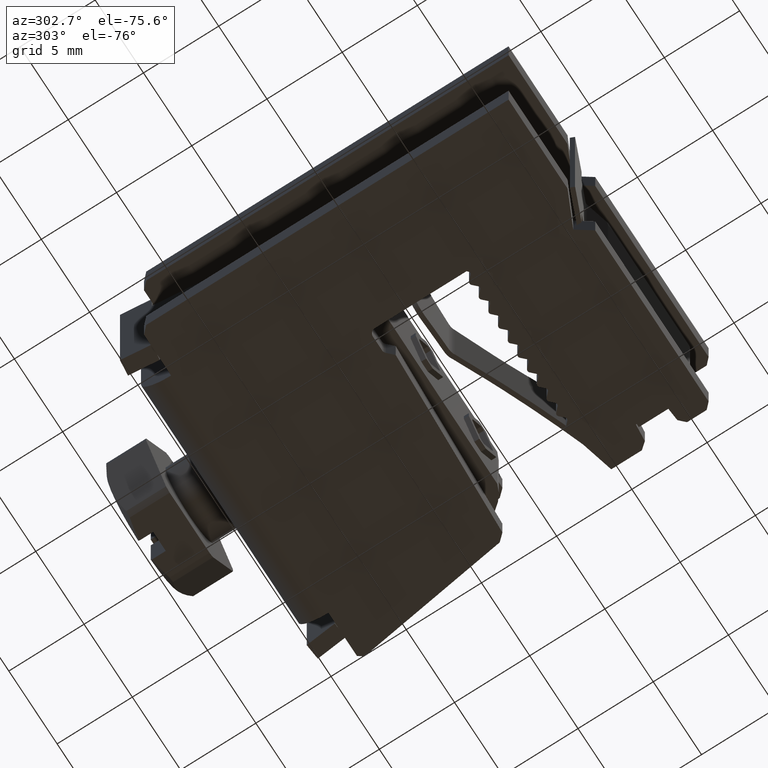
[diagram: clean part render]
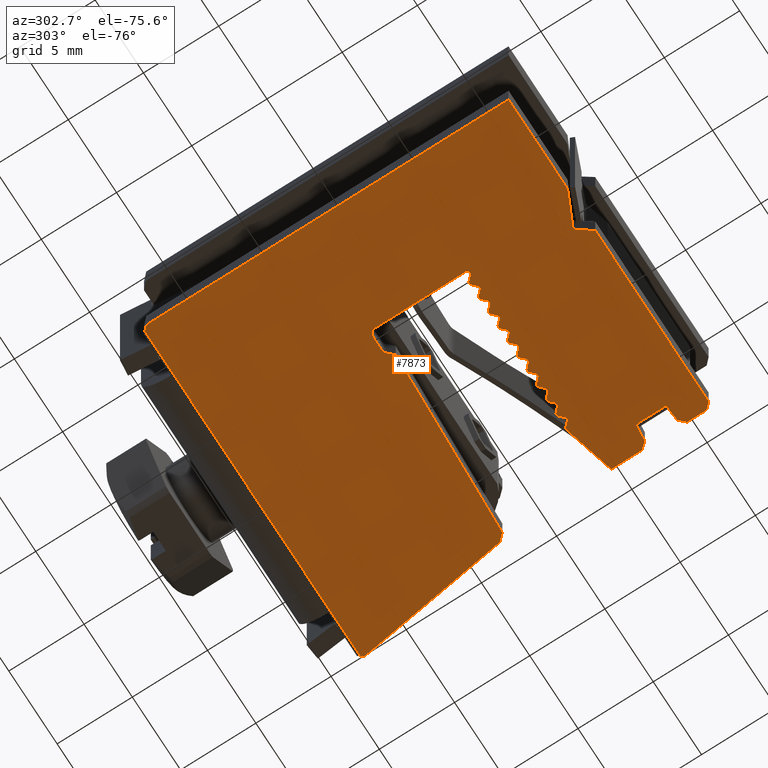
[diagram: same view with one face highlighted and labeled with its STEP entity id]
A machine part, auxiliary view. The second image highlights one B-rep face of the part: STEP entity #7873.
In plain terms, the highlighted planar face has unit normal (0, 0, 1).
Its self-contained STEP definition (entity closure, byte-faithful):
#29 = CARTESIAN_POINT ( 'NONE',  ( 4.722601150250723900, 6.082502876557419400, 0.0000000000000000000 ) ) ;
#36 = DIRECTION ( 'NONE',  ( 0.0000000000000000000, 0.0000000000000000000, 1.000000000000000000 ) ) ;
#37 = DIRECTION ( 'NONE',  ( -1.000000000000000000, 6.065466699181716300E-015, 0.0000000000000000000 ) ) ;
#40 = LINE ( 'NONE', #83, #2666 ) ;
#75 = DIRECTION ( 'NONE',  ( 1.000000000000000000, 0.0000000000000000000, 0.0000000000000000000 ) ) ;
#83 = CARTESIAN_POINT ( 'NONE',  ( 7.822759001598525300, 12.51150000000231400, 0.0000000000000000000 ) ) ;
#202 = LINE ( 'NONE', #237, #2765 ) ;
#231 = DIRECTION ( 'NONE',  ( -0.0000000000000000000, 1.000000000000000000, 0.0000000000000000000 ) ) ;
#237 = CARTESIAN_POINT ( 'NONE',  ( 17.10677823012335700, -12.06975933738560900, 0.0000000000000000000 ) ) ;
#240 = LINE ( 'NONE', #249, #2740 ) ;
#244 = DIRECTION ( 'NONE',  ( 0.7071067811865435800, -0.7071067811865513500, 0.0000000000000000000 ) ) ;
#249 = CARTESIAN_POINT ( 'NONE',  ( 6.069487555859775600, 12.40679067427697100, 0.0000000000000000000 ) ) ;
#351 = CARTESIAN_POINT ( 'NONE',  ( 4.823717419961033300, 5.981386606847112700, -5.204170427930421300E-015 ) ) ;
#377 = CARTESIAN_POINT ( 'NONE',  ( 7.632106903367505500, 5.981386606848028400, -5.637851296924623100E-015 ) ) ;
#393 = CARTESIAN_POINT ( 'NONE',  ( 12.35847019589036600, 6.255645337120669500, -1.040834085586084300E-014 ) ) ;
#394 = CARTESIAN_POINT ( 'NONE',  ( 18.53677823012254000, 0.3933912111475201300, -8.673617379884035500E-015 ) ) ;
#408 = CARTESIAN_POINT ( 'NONE',  ( 14.84204281414866100, 5.981386606838452900, -7.806255641895631900E-015 ) ) ;
#411 = CARTESIAN_POINT ( 'NONE',  ( 12.10567952161617100, 6.255645337120672200, -8.673617379884035500E-015 ) ) ;
#417 = CARTESIAN_POINT ( 'NONE',  ( 7.357848173076340500, 6.255645337139194200, -3.469446951953614200E-015 ) ) ;
#442 = CARTESIAN_POINT ( 'NONE',  ( 5.827258094237934400, 5.981386606850907000, -6.938893903907228400E-015 ) ) ;
#480 = CARTESIAN_POINT ( 'NONE',  ( 6.101516824527660500, 6.255645337140633100, -7.372574772901430200E-015 ) ) ;
#483 = CARTESIAN_POINT ( 'NONE',  ( 13.36201087016494400, 6.255645337126948000, -1.040834085586084300E-014 ) ) ;
#516 = CARTESIAN_POINT ( 'NONE',  ( 13.63626960045344000, 5.981386606838452000, -7.806255641895631900E-015 ) ) ;
#522 = CARTESIAN_POINT ( 'NONE',  ( 13.83850213987280000, 5.981386606838447600, -9.540979117872439000E-015 ) ) ;
#540 = CARTESIAN_POINT ( 'NONE',  ( 6.830798768508448600, 5.981386606849504500, -5.204170427930421300E-015 ) ) ;
#548 = CARTESIAN_POINT ( 'NONE',  ( 6.628566229091789300, 5.981386606849500100, -7.372574772901430200E-015 ) ) ;
#551 = CARTESIAN_POINT ( 'NONE',  ( 13.10922019589072300, 6.255645337126950700, -8.673617379884035500E-015 ) ) ;
#572 = CARTESIAN_POINT ( 'NONE',  ( 12.83496146559711400, 5.981386606833341400, -7.806255641895631900E-015 ) ) ;
#581 = CARTESIAN_POINT ( 'NONE',  ( 6.354307498800652700, 6.255645337140637500, -6.938893903907228400E-015 ) ) ;
#610 = CARTESIAN_POINT ( 'NONE',  ( 14.11276087016391200, 6.255645337129557500, -8.673617379884035500E-015 ) ) ;
#614 = CARTESIAN_POINT ( 'NONE',  ( 11.83142079132903200, 5.981386606833531500, -9.540979117872439000E-015 ) ) ;
#621 = CARTESIAN_POINT ( 'NONE',  ( 5.625025554816157400, 5.981386606850914900, -7.372574772901430200E-015 ) ) ;
#644 = CARTESIAN_POINT ( 'NONE',  ( 5.350766824528947500, 6.255645337138125800, -6.938893903907228400E-015 ) ) ;
#665 = CARTESIAN_POINT ( 'NONE',  ( 5.816696881586721300, 12.51150000000231400, -1.734723475976807100E-015 ) ) ;
#671 = CARTESIAN_POINT ( 'NONE',  ( 17.10677823012335400, 2.875999999990634000, 0.0000000000000000000 ) ) ;
#677 = CARTESIAN_POINT ( 'NONE',  ( 18.18063862555324700, 2.969950610800876900, 0.0000000000000000000 ) ) ;
#679 = CARTESIAN_POINT ( 'NONE',  ( 4.892278230129295300, 12.51150000000231300, 0.0000000000000000000 ) ) ;
#691 = CARTESIAN_POINT ( 'NONE',  ( 15.11630154443840500, 6.255645337128195900, -8.673617379884035500E-015 ) ) ;
#699 = CARTESIAN_POINT ( 'NONE',  ( 6.069487555859778300, 12.40679067427696900, -3.469446951953614200E-015 ) ) ;
#702 = CARTESIAN_POINT ( 'NONE',  ( 8.830798768508449500, 5.981386606848521300, 0.0000000000000000000 ) ) ;
#704 = CARTESIAN_POINT ( 'NONE',  ( 18.53677823012254300, -0.9115000000102674300, -4.553649124439118600E-015 ) ) ;
#712 = CARTESIAN_POINT ( 'NONE',  ( 4.621484880540415400, 5.981386606847115300, -4.336808689942017700E-016 ) ) ;
#739 = CARTESIAN_POINT ( 'NONE',  ( 14.36555154443816200, 6.255645337129556600, -1.040834085586084300E-014 ) ) ;
#744 = CARTESIAN_POINT ( 'NONE',  ( 18.14500227544563400, 0.7851671658244251400, -1.019150042136374200E-014 ) ) ;
#752 = CARTESIAN_POINT ( 'NONE',  ( 5.097976150252054400, 6.255645337138133800, -7.372574772901430200E-015 ) ) ;
#780 = CARTESIAN_POINT ( 'NONE',  ( 17.10677823012335700, 0.8759999999907573900, -4.770489558936219500E-015 ) ) ;
#785 = CARTESIAN_POINT ( 'NONE',  ( 14.63981027472926000, 5.981386606838459100, -6.071532165918824800E-015 ) ) ;
#1254 = CARTESIAN_POINT ( 'NONE',  ( 5.732776863096832500, -0.2578493662919057500, 0.0000000000000000000 ) ) ;
#1484 = LINE ( 'NONE', #1254, #1516 ) ;
#1516 = VECTOR ( 'NONE', #9740, 1000.000000000000000 ) ;
#1547 = CIRCLE ( 'NONE', #1551, 0.1787499999999827600 ) ;
#1551 = AXIS2_PLACEMENT_3D ( 'NONE', #10694, #10725, #10722 ) ;
#1555 = VECTOR ( 'NONE', #10661, 1000.000000000000100 ) ;
#1560 = VECTOR ( 'NONE', #10720, 1000.000000000000100 ) ;
#1579 = CIRCLE ( 'NONE', #1581, 0.1787500000028485200 ) ;
#1581 = AXIS2_PLACEMENT_3D ( 'NONE', #9825, #9827, #9788 ) ;
#1605 = AXIS2_PLACEMENT_3D ( 'NONE', #9940, #9956, #9929 ) ;
#1608 = VECTOR ( 'NONE', #9961, 1000.000000000000100 ) ;
#1612 = AXIS2_PLACEMENT_3D ( 'NONE', #9893, #9917, #9901 ) ;
#1615 = VECTOR ( 'NONE', #9854, 1000.000000000000100 ) ;
#1617 = CIRCLE ( 'NONE', #1622, 0.1429999999980873800 ) ;
#1622 = AXIS2_PLACEMENT_3D ( 'NONE', #9919, #9884, #9877 ) ;
#1629 = CIRCLE ( 'NONE', #1605, 0.1429999999981064500 ) ;
#1642 = CIRCLE ( 'NONE', #1649, 0.1429999999999504400 ) ;
#1649 = AXIS2_PLACEMENT_3D ( 'NONE', #9895, #9896, #9882 ) ;
#1656 = CIRCLE ( 'NONE', #1612, 0.1429999999981064500 ) ;
#1676 = CIRCLE ( 'NONE', #1683, 0.1787500000028485200 ) ;
#1683 = AXIS2_PLACEMENT_3D ( 'NONE', #10046, #10021, #10026 ) ;
#1685 = VECTOR ( 'NONE', #10051, 1000.000000000000100 ) ;
#1691 = CIRCLE ( 'NONE', #1695, 0.1429999999981064500 ) ;
#1695 = AXIS2_PLACEMENT_3D ( 'NONE', #10030, #10016, #10012 ) ;
#1696 = VECTOR ( 'NONE', #9977, 1000.000000000000100 ) ;
#1702 = VECTOR ( 'NONE', #10038, 1000.000000000000100 ) ;
#1712 = AXIS2_PLACEMENT_3D ( 'NONE', #9989, #9984, #9973 ) ;
#1722 = CIRCLE ( 'NONE', #1712, 0.1430000000000493400 ) ;
#1727 = CIRCLE ( 'NONE', #1728, 0.1787500000000035700 ) ;
#1728 = AXIS2_PLACEMENT_3D ( 'NONE', #10116, #10133, #10137 ) ;
#1730 = VECTOR ( 'NONE', #10120, 1000.000000000000100 ) ;
#1732 = CIRCLE ( 'NONE', #1744, 0.1787500000000226400 ) ;
#1733 = AXIS2_PLACEMENT_3D ( 'NONE', #10117, #10096, #10135 ) ;
#1737 = CIRCLE ( 'NONE', #1741, 0.1787500000028485200 ) ;
#1738 = CIRCLE ( 'NONE', #1739, 0.1430000000000493400 ) ;
#1739 = AXIS2_PLACEMENT_3D ( 'NONE', #10118, #10100, #10106 ) ;
#1741 = AXIS2_PLACEMENT_3D ( 'NONE', #10121, #10107, #10122 ) ;
#1742 = CIRCLE ( 'NONE', #1733, 0.1429999999981064500 ) ;
#1744 = AXIS2_PLACEMENT_3D ( 'NONE', #10112, #10102, #10103 ) ;
#1747 = VECTOR ( 'NONE', #10152, 1000.000000000000100 ) ;
#1752 = CIRCLE ( 'NONE', #1784, 0.1429999999980864900 ) ;
#1753 = VECTOR ( 'NONE', #10222, 1000.000000000000100 ) ;
#1760 = VECTOR ( 'NONE', #10166, 1000.000000000000100 ) ;
#1763 = VECTOR ( 'NONE', #10186, 1000.000000000000100 ) ;
#1768 = CIRCLE ( 'NONE', #1772, 0.1429999999980864900 ) ;
#1772 = AXIS2_PLACEMENT_3D ( 'NONE', #10141, #10147, #10142 ) ;
#1784 = AXIS2_PLACEMENT_3D ( 'NONE', #10263, #10255, #10271 ) ;
#1796 = VECTOR ( 'NONE', #10252, 1000.000000000000100 ) ;
#1816 = VECTOR ( 'NONE', #10335, 1000.000000000000100 ) ;
#1823 = AXIS2_PLACEMENT_3D ( 'NONE', #10364, #10403, #10400 ) ;
#1824 = AXIS2_PLACEMENT_3D ( 'NONE', #10389, #10391, #10393 ) ;
#1828 = VECTOR ( 'NONE', #10450, 1000.000000000000100 ) ;
#1836 = CIRCLE ( 'NONE', #1824, 0.1787499999991587500 ) ;
#1847 = VECTOR ( 'NONE', #10320, 1000.000000000000100 ) ;
#1862 = CIRCLE ( 'NONE', #1823, 0.1430000000000094500 ) ;
#1938 = CIRCLE ( 'NONE', #1941, 0.1787500000000226400 ) ;
#1939 = VECTOR ( 'NONE', #9503, 1000.000000000000100 ) ;
#1941 = AXIS2_PLACEMENT_3D ( 'NONE', #7477, #7468, #7489 ) ;
#1945 = AXIS2_PLACEMENT_3D ( 'NONE', #7063, #7086, #7067 ) ;
#1962 = CIRCLE ( 'NONE', #1945, 0.1430000000017172800 ) ;
#1967 = VECTOR ( 'NONE', #7516, 1000.000000000000100 ) ;
#1991 = CIRCLE ( 'NONE', #2033, 0.1787500000000417100 ) ;
#2012 = AXIS2_PLACEMENT_3D ( 'NONE', #7220, #7218, #7236 ) ;
#2033 = AXIS2_PLACEMENT_3D ( 'NONE', #7249, #7286, #7279 ) ;
#2045 = CIRCLE ( 'NONE', #2012, 0.1787500000019065500 ) ;
#2066 = VECTOR ( 'NONE', #7387, 1000.000000000000100 ) ;
#2069 = VECTOR ( 'NONE', #7419, 1000.000000000000100 ) ;
#2093 = VERTEX_POINT ( 'NONE', #5616 ) ;
#2097 = VERTEX_POINT ( 'NONE', #5602 ) ;
#2114 = VERTEX_POINT ( 'NONE', #5579 ) ;
#2121 = VECTOR ( 'NONE', #8892, 1000.000000000000000 ) ;
#2126 = VECTOR ( 'NONE', #8949, 1000.000000000000100 ) ;
#2132 = VECTOR ( 'NONE', #8820, 1000.000000000000000 ) ;
#2134 = VECTOR ( 'NONE', #8829, 1000.000000000000000 ) ;
#2136 = VERTEX_POINT ( 'NONE', #5595 ) ;
#2137 = VECTOR ( 'NONE', #8895, 1000.000000000000100 ) ;
#2138 = VERTEX_POINT ( 'NONE', #5586 ) ;
#2145 = VERTEX_POINT ( 'NONE', #5559 ) ;
#2147 = VERTEX_POINT ( 'NONE', #5564 ) ;
#2146 = VECTOR ( 'NONE', #8862, 1000.000000000000000 ) ;
#2148 = VERTEX_POINT ( 'NONE', #5570 ) ;
#2151 = VECTOR ( 'NONE', #8879, 1000.000000000000000 ) ;
#2153 = VECTOR ( 'NONE', #8913, 1000.000000000000000 ) ;
#2157 = VERTEX_POINT ( 'NONE', #5578 ) ;
#2161 = VECTOR ( 'NONE', #8929, 1000.000000000000100 ) ;
#2167 = VECTOR ( 'NONE', #8926, 1000.000000000000000 ) ;
#2175 = VERTEX_POINT ( 'NONE', #5611 ) ;
#2177 = VERTEX_POINT ( 'NONE', #5600 ) ;
#2188 = VERTEX_POINT ( 'NONE', #4374 ) ;
#2190 = VERTEX_POINT ( 'NONE', #4367 ) ;
#2192 = VERTEX_POINT ( 'NONE', #4390 ) ;
#2195 = VERTEX_POINT ( 'NONE', #4399 ) ;
#2197 = VERTEX_POINT ( 'NONE', #4385 ) ;
#2199 = VERTEX_POINT ( 'NONE', #4391 ) ;
#2203 = VERTEX_POINT ( 'NONE', #4368 ) ;
#2209 = VERTEX_POINT ( 'NONE', #4400 ) ;
#2214 = VERTEX_POINT ( 'NONE', #4389 ) ;
#2265 = VERTEX_POINT ( 'NONE', #3479 ) ;
#2266 = VERTEX_POINT ( 'NONE', #3418 ) ;
#2267 = VERTEX_POINT ( 'NONE', #3441 ) ;
#2268 = VERTEX_POINT ( 'NONE', #3449 ) ;
#2269 = VERTEX_POINT ( 'NONE', #3483 ) ;
#2278 = VERTEX_POINT ( 'NONE', #3455 ) ;
#2285 = VERTEX_POINT ( 'NONE', #3465 ) ;
#2286 = VERTEX_POINT ( 'NONE', #3490 ) ;
#2292 = VERTEX_POINT ( 'NONE', #3477 ) ;
#2299 = VERTEX_POINT ( 'NONE', #3471 ) ;
#2302 = VERTEX_POINT ( 'NONE', #3491 ) ;
#2304 = VERTEX_POINT ( 'NONE', #3442 ) ;
#2305 = VERTEX_POINT ( 'NONE', #3496 ) ;
#2307 = VERTEX_POINT ( 'NONE', #3510 ) ;
#2309 = VERTEX_POINT ( 'NONE', #3502 ) ;
#2310 = VERTEX_POINT ( 'NONE', #3527 ) ;
#2311 = VERTEX_POINT ( 'NONE', #3503 ) ;
#2430 = VECTOR ( 'NONE', #8759, 1000.000000000000100 ) ;
#2435 = VECTOR ( 'NONE', #8739, 1000.000000000000000 ) ;
#2455 = AXIS2_PLACEMENT_3D ( 'NONE', #8573, #8577, #8578 ) ;
#2456 = AXIS2_PLACEMENT_3D ( 'NONE', #3548, #3536, #3531 ) ;
#2461 = CIRCLE ( 'NONE', #2456, 0.1787500000001128500 ) ;
#2479 = VECTOR ( 'NONE', #3594, 999.9999999999998900 ) ;
#2505 = CIRCLE ( 'NONE', #2516, 0.3574999999993444500 ) ;
#2515 = VECTOR ( 'NONE', #3667, 1000.000000000000100 ) ;
#2516 = AXIS2_PLACEMENT_3D ( 'NONE', #3673, #3643, #3674 ) ;
#2532 = VECTOR ( 'NONE', #3652, 1000.000000000000100 ) ;
#2544 = VECTOR ( 'NONE', #4307, 1000.000000000000000 ) ;
#2566 = VECTOR ( 'NONE', #8788, 1000.000000000000100 ) ;
#2584 = VECTOR ( 'NONE', #4344, 1000.000000000000100 ) ;
#2599 = VECTOR ( 'NONE', #4324, 1000.000000000000000 ) ;
#2603 = CIRCLE ( 'NONE', #2632, 0.3574999999983990400 ) ;
#2632 = AXIS2_PLACEMENT_3D ( 'NONE', #4347, #4325, #4311 ) ;
#2658 = AXIS2_PLACEMENT_3D ( 'NONE', #29, #36, #37 ) ;
#2666 = VECTOR ( 'NONE', #75, 1000.000000000000000 ) ;
#2687 = CIRCLE ( 'NONE', #2658, 0.1430000000008932700 ) ;
#2740 = VECTOR ( 'NONE', #244, 1000.000000000000100 ) ;
#2765 = VECTOR ( 'NONE', #231, 1000.000000000000000 ) ;
#2846 = VECTOR ( 'NONE', #9072, 1000.000000000000100 ) ;
#2879 = VECTOR ( 'NONE', #9058, 1000.000000000000100 ) ;
#2895 = CIRCLE ( 'NONE', #2901, 0.1430000000000302700 ) ;
#2901 = AXIS2_PLACEMENT_3D ( 'NONE', #9154, #9138, #9119 ) ;
#3086 = EDGE_CURVE ( 'NONE', #2265, #6711, #2461, .T. ) ;
#3111 = EDGE_CURVE ( 'NONE', #6695, #2269, #3557, .T. ) ;
#3124 = EDGE_CURVE ( 'NONE', #6684, #2266, #3613, .T. ) ;
#3133 = EDGE_CURVE ( 'NONE', #2310, #2309, #3642, .T. ) ;
#3135 = EDGE_CURVE ( 'NONE', #2286, #6683, #2505, .T. ) ;
#3268 = EDGE_CURVE ( 'NONE', #4520, #6685, #4323, .T. ) ;
#3269 = EDGE_CURVE ( 'NONE', #4519, #6711, #4315, .T. ) ;
#3271 = EDGE_CURVE ( 'NONE', #6684, #6690, #4331, .T. ) ;
#3277 = EDGE_CURVE ( 'NONE', #6725, #6715, #2603, .T. ) ;
#3312 = EDGE_CURVE ( 'NONE', #6695, #4535, #2687, .T. ) ;
#3338 = EDGE_CURVE ( 'NONE', #6683, #6715, #40, .T. ) ;
#3404 = EDGE_CURVE ( 'NONE', #6754, #6690, #202, .T. ) ;
#3407 = EDGE_CURVE ( 'NONE', #6725, #2267, #240, .T. ) ;
#3418 = CARTESIAN_POINT ( 'NONE',  ( 18.53677823012340300, 3.394381264009348300, -4.336808689942017700E-016 ) ) ;
#3441 = CARTESIAN_POINT ( 'NONE',  ( 6.465278230130921100, 12.01100000000582200, 0.0000000000000000000 ) ) ;
#3442 = CARTESIAN_POINT ( 'NONE',  ( 20.02925837491677900, 23.07833341090970700, 6.505213034913026600E-016 ) ) ;
#3449 = CARTESIAN_POINT ( 'NONE',  ( 3.571739011085232300, -1.269000000010277500, 0.0000000000000000000 ) ) ;
#3455 = CARTESIAN_POINT ( 'NONE',  ( 18.17927823012253100, -1.269000000010277900, -4.770489558936219500E-015 ) ) ;
#3465 = CARTESIAN_POINT ( 'NONE',  ( 20.17074845210280600, 22.87626463920668800, 0.0000000000000000000 ) ) ;
#3471 = CARTESIAN_POINT ( 'NONE',  ( -2.274672324386259900, 23.07833341090971400, -2.818925648462311500E-015 ) ) ;
#3477 = CARTESIAN_POINT ( 'NONE',  ( -2.533721769870787900, -1.269000000010277900, 0.0000000000000000000 ) ) ;
#3479 = CARTESIAN_POINT ( 'NONE',  ( 15.28896078588774400, 6.301909241440285700, -1.040834085586084300E-014 ) ) ;
#3483 = CARTESIAN_POINT ( 'NONE',  ( 4.534778230129950800, 6.068093257257580800, 0.0000000000000000000 ) ) ;
#3490 = CARTESIAN_POINT ( 'NONE',  ( 4.534778230129950800, 12.15400000000296500, 0.0000000000000000000 ) ) ;
#3491 = CARTESIAN_POINT ( 'NONE',  ( -2.533721769870782600, 22.81928396542519300, -1.474514954580286000E-014 ) ) ;
#3496 = CARTESIAN_POINT ( 'NONE',  ( 5.732776863096832500, -0.2578493662919071300, -5.204170427930421300E-015 ) ) ;
#3502 = CARTESIAN_POINT ( 'NONE',  ( 18.71701019759071700, 12.96086298535677300, -3.903127820947816000E-015 ) ) ;
#3503 = CARTESIAN_POINT ( 'NONE',  ( 18.53677823012339900, 5.431659180092671200, -5.204170427930421300E-015 ) ) ;
#3510 = CARTESIAN_POINT ( 'NONE',  ( 6.440703507310096200, -1.269000000010277000, -2.818925648462311500E-015 ) ) ;
#3527 = CARTESIAN_POINT ( 'NONE',  ( 18.32094110722047400, 12.52862942002462900, -3.035766082959412400E-015 ) ) ;
#3531 = DIRECTION ( 'NONE',  ( -1.000000000000000000, -1.455712007811786400E-014, 0.0000000000000000000 ) ) ;
#3536 = DIRECTION ( 'NONE',  ( 0.0000000000000000000, 0.0000000000000000000, 1.000000000000000000 ) ) ;
#3548 = CARTESIAN_POINT ( 'NONE',  ( 15.24269688157558300, 6.129249999991021300, -5.204170427930421300E-015 ) ) ;
#3557 = LINE ( 'NONE', #3573, #2479 ) ;
#3573 = CARTESIAN_POINT ( 'NONE',  ( 4.621484880540415400, 5.981386606847116200, 0.0000000000000000000 ) ) ;
#3594 = DIRECTION ( 'NONE',  ( -0.7071067811865510100, 0.7071067811865441300, 0.0000000000000000000 ) ) ;
#3613 = LINE ( 'NONE', #3651, #2532 ) ;
#3642 = LINE ( 'NONE', #3675, #2515 ) ;
#3643 = DIRECTION ( 'NONE',  ( -0.0000000000000000000, -0.0000000000000000000, -1.000000000000000000 ) ) ;
#3651 = CARTESIAN_POINT ( 'NONE',  ( 18.18063862555324700, 2.969950610800877700, 0.0000000000000000000 ) ) ;
#3652 = DIRECTION ( 'NONE',  ( 0.6427876096892848300, 0.7660444431166743000, 0.0000000000000000000 ) ) ;
#3667 = DIRECTION ( 'NONE',  ( 0.6755902076153877900, 0.7372773368103736600, 0.0000000000000000000 ) ) ;
#3673 = CARTESIAN_POINT ( 'NONE',  ( 4.892278230129295300, 12.15400000000296800, 0.0000000000000000000 ) ) ;
#3674 = DIRECTION ( 'NONE',  ( -1.000000000000000000, 0.0000000000000000000, 0.0000000000000000000 ) ) ;
#3675 = CARTESIAN_POINT ( 'NONE',  ( 18.32094110722047000, 12.52862942002462900, 0.0000000000000000000 ) ) ;
#4306 = CARTESIAN_POINT ( 'NONE',  ( 18.53677823012254000, -13.96575933738560800, -3.469446951953614200E-015 ) ) ;
#4307 = DIRECTION ( 'NONE',  ( -0.0000000000000000000, -1.000000000000000000, 0.0000000000000000000 ) ) ;
#4311 = DIRECTION ( 'NONE',  ( -1.000000000000000000, -9.704746718794828400E-015, 0.0000000000000000000 ) ) ;
#4313 = CARTESIAN_POINT ( 'NONE',  ( 8.442968749527807400, 2.118014887484744400, 0.0000000000000000000 ) ) ;
#4315 = LINE ( 'NONE', #4316, #2584 ) ;
#4316 = CARTESIAN_POINT ( 'NONE',  ( 2.567327935761563000, -6.293328271548646500, -1.214306433183765000E-014 ) ) ;
#4323 = LINE ( 'NONE', #4306, #2544 ) ;
#4324 = DIRECTION ( 'NONE',  ( -0.9961946980916921400, -0.08715574274826917700, 0.0000000000000000000 ) ) ;
#4325 = DIRECTION ( 'NONE',  ( 0.0000000000000000000, 0.0000000000000000000, 1.000000000000000000 ) ) ;
#4331 = LINE ( 'NONE', #4313, #2599 ) ;
#4344 = DIRECTION ( 'NONE',  ( 0.7071067811865474600, 0.7071067811865474600, 0.0000000000000000000 ) ) ;
#4347 = CARTESIAN_POINT ( 'NONE',  ( 5.816696881586721300, 12.15400000000391300, -3.469446951953614200E-015 ) ) ;
#4367 = CARTESIAN_POINT ( 'NONE',  ( 8.105057498798132100, 6.255645337138695100, -7.372574772901430200E-015 ) ) ;
#4368 = CARTESIAN_POINT ( 'NONE',  ( 10.82788011705470400, 5.981386606834808700, -9.540979117872439000E-015 ) ) ;
#4374 = CARTESIAN_POINT ( 'NONE',  ( 11.35492952161870800, 6.255645337124580200, -1.040834085586084300E-014 ) ) ;
#4385 = CARTESIAN_POINT ( 'NONE',  ( 8.357848173076343200, 6.255645337138703100, -6.938893903907228400E-015 ) ) ;
#4389 = CARTESIAN_POINT ( 'NONE',  ( 9.632106903367505500, 5.981386606847046900, -7.372574772901430200E-015 ) ) ;
#4390 = CARTESIAN_POINT ( 'NONE',  ( 9.728223173061778100, 5.939590315878168900, -1.734723475976807100E-015 ) ) ;
#4391 = CARTESIAN_POINT ( 'NONE',  ( 8.632106903367505500, 5.981386606847537200, -7.372574772901430200E-015 ) ) ;
#4399 = CARTESIAN_POINT ( 'NONE',  ( 11.10213884734448100, 6.255645337124586400, -8.673617379884035500E-015 ) ) ;
#4400 = CARTESIAN_POINT ( 'NONE',  ( 7.105057498798131200, 6.255645337139187100, -3.903127820947816000E-015 ) ) ;
#4491 = VERTEX_POINT ( 'NONE', #377 ) ;
#4492 = VERTEX_POINT ( 'NONE', #411 ) ;
#4508 = VERTEX_POINT ( 'NONE', #417 ) ;
#4513 = VERTEX_POINT ( 'NONE', #393 ) ;
#4519 = VERTEX_POINT ( 'NONE', #408 ) ;
#4520 = VERTEX_POINT ( 'NONE', #394 ) ;
#4535 = VERTEX_POINT ( 'NONE', #351 ) ;
#4929 = ORIENTED_EDGE ( 'NONE', *, *, #3277, .T. ) ;
#4932 = ORIENTED_EDGE ( 'NONE', *, *, #3312, .T. ) ;
#4940 = ORIENTED_EDGE ( 'NONE', *, *, #7959, .T. ) ;
#4943 = ORIENTED_EDGE ( 'NONE', *, *, #3111, .F. ) ;
#4945 = ORIENTED_EDGE ( 'NONE', *, *, #7593, .T. ) ;
#4948 = ORIENTED_EDGE ( 'NONE', *, *, #7909, .T. ) ;
#4949 = ORIENTED_EDGE ( 'NONE', *, *, #7897, .T. ) ;
#4951 = ORIENTED_EDGE ( 'NONE', *, *, #3135, .F. ) ;
#4955 = ORIENTED_EDGE ( 'NONE', *, *, #7934, .T. ) ;
#4957 = ORIENTED_EDGE ( 'NONE', *, *, #8407, .F. ) ;
#4958 = ORIENTED_EDGE ( 'NONE', *, *, #7949, .F. ) ;
#4960 = ORIENTED_EDGE ( 'NONE', *, *, #3407, .F. ) ;
#4967 = ORIENTED_EDGE ( 'NONE', *, *, #7943, .T. ) ;
#4974 = ORIENTED_EDGE ( 'NONE', *, *, #7918, .F. ) ;
#4975 = ORIENTED_EDGE ( 'NONE', *, *, #3338, .F. ) ;
#4982 = ORIENTED_EDGE ( 'NONE', *, *, #3133, .F. ) ;
#4985 = ORIENTED_EDGE ( 'NONE', *, *, #7953, .F. ) ;
#5495 = VERTEX_POINT ( 'NONE', #480 ) ;
#5503 = VERTEX_POINT ( 'NONE', #442 ) ;
#5515 = VERTEX_POINT ( 'NONE', #483 ) ;
#5516 = VERTEX_POINT ( 'NONE', #516 ) ;
#5532 = VERTEX_POINT ( 'NONE', #522 ) ;
#5559 = CARTESIAN_POINT ( 'NONE',  ( 11.62918825190976500, 5.981386606833522600, -7.806255641895631900E-015 ) ) ;
#5564 = CARTESIAN_POINT ( 'NONE',  ( 7.731452835898183600, 5.939513835347831600, -2.602085213570460300E-015 ) ) ;
#5570 = CARTESIAN_POINT ( 'NONE',  ( 10.35138884734021200, 6.255645337129887000, -1.040834085586084300E-014 ) ) ;
#5578 = CARTESIAN_POINT ( 'NONE',  ( 7.830798768508447700, 5.981386606849011600, -5.204170427930421300E-015 ) ) ;
#5579 = CARTESIAN_POINT ( 'NONE',  ( 9.824339442784175700, 5.981386606848021300, -7.806255641895631900E-015 ) ) ;
#5586 = CARTESIAN_POINT ( 'NONE',  ( 8.731452835898219100, 5.939513835347337800, -2.602085213588159600E-015 ) ) ;
#5595 = CARTESIAN_POINT ( 'NONE',  ( 9.357848173076339600, 6.255645337138210100, -6.938893903907228400E-015 ) ) ;
#5600 = CARTESIAN_POINT ( 'NONE',  ( 12.63272892617768900, 5.981386606833347700, -6.071532165918824800E-015 ) ) ;
#5602 = CARTESIAN_POINT ( 'NONE',  ( 10.09859817306604400, 6.255645337129888800, -8.673617379884035500E-015 ) ) ;
#5611 = CARTESIAN_POINT ( 'NONE',  ( 10.62564757763527900, 5.981386606834822000, -7.806255641895631900E-015 ) ) ;
#5616 = CARTESIAN_POINT ( 'NONE',  ( 9.105057498798130300, 6.255645337138202100, -5.637851296924623100E-015 ) ) ;
#6033 = ORIENTED_EDGE ( 'NONE', *, *, #7925, .T. ) ;
#6036 = ORIENTED_EDGE ( 'NONE', *, *, #8101, .T. ) ;
#6064 = ORIENTED_EDGE ( 'NONE', *, *, #8173, .T. ) ;
#6065 = ORIENTED_EDGE ( 'NONE', *, *, #3271, .T. ) ;
#6066 = ORIENTED_EDGE ( 'NONE', *, *, #8192, .T. ) ;
#6068 = ORIENTED_EDGE ( 'NONE', *, *, #8463, .T. ) ;
#6069 = ORIENTED_EDGE ( 'NONE', *, *, #7926, .F. ) ;
#6072 = ORIENTED_EDGE ( 'NONE', *, *, #3404, .F. ) ;
#6073 = ORIENTED_EDGE ( 'NONE', *, *, #7945, .T. ) ;
#6074 = ORIENTED_EDGE ( 'NONE', *, *, #8200, .T. ) ;
#6075 = ORIENTED_EDGE ( 'NONE', *, *, #8130, .T. ) ;
#6076 = ORIENTED_EDGE ( 'NONE', *, *, #8188, .T. ) ;
#6077 = ORIENTED_EDGE ( 'NONE', *, *, #8216, .T. ) ;
#6078 = ORIENTED_EDGE ( 'NONE', *, *, #8065, .F. ) ;
#6079 = ORIENTED_EDGE ( 'NONE', *, *, #8335, .T. ) ;
#6080 = ORIENTED_EDGE ( 'NONE', *, *, #3269, .T. ) ;
#6081 = ORIENTED_EDGE ( 'NONE', *, *, #8154, .T. ) ;
#6082 = ORIENTED_EDGE ( 'NONE', *, *, #8205, .T. ) ;
#6083 = ORIENTED_EDGE ( 'NONE', *, *, #8342, .F. ) ;
#6084 = ORIENTED_EDGE ( 'NONE', *, *, #7958, .T. ) ;
#6085 = ORIENTED_EDGE ( 'NONE', *, *, #8146, .F. ) ;
#6086 = ORIENTED_EDGE ( 'NONE', *, *, #8144, .T. ) ;
#6087 = ORIENTED_EDGE ( 'NONE', *, *, #8174, .T. ) ;
#6088 = ORIENTED_EDGE ( 'NONE', *, *, #8005, .F. ) ;
#6089 = ORIENTED_EDGE ( 'NONE', *, *, #8464, .T. ) ;
#6090 = ORIENTED_EDGE ( 'NONE', *, *, #8034, .T. ) ;
#6091 = ORIENTED_EDGE ( 'NONE', *, *, #8120, .T. ) ;
#6092 = ORIENTED_EDGE ( 'NONE', *, *, #7610, .T. ) ;
#6093 = ORIENTED_EDGE ( 'NONE', *, *, #8275, .T. ) ;
#6094 = ORIENTED_EDGE ( 'NONE', *, *, #8256, .T. ) ;
#6097 = ORIENTED_EDGE ( 'NONE', *, *, #7933, .T. ) ;
#6098 = ORIENTED_EDGE ( 'NONE', *, *, #8105, .T. ) ;
#6099 = ORIENTED_EDGE ( 'NONE', *, *, #8251, .T. ) ;
#6100 = ORIENTED_EDGE ( 'NONE', *, *, #3086, .F. ) ;
#6101 = ORIENTED_EDGE ( 'NONE', *, *, #8169, .F. ) ;
#6104 = ORIENTED_EDGE ( 'NONE', *, *, #8213, .T. ) ;
#6106 = ORIENTED_EDGE ( 'NONE', *, *, #8131, .T. ) ;
#6107 = ORIENTED_EDGE ( 'NONE', *, *, #8179, .F. ) ;
#6108 = ORIENTED_EDGE ( 'NONE', *, *, #8041, .F. ) ;
#6109 = ORIENTED_EDGE ( 'NONE', *, *, #8365, .T. ) ;
#6110 = ORIENTED_EDGE ( 'NONE', *, *, #3268, .T. ) ;
#6111 = ORIENTED_EDGE ( 'NONE', *, *, #8147, .T. ) ;
#6113 = ORIENTED_EDGE ( 'NONE', *, *, #8416, .F. ) ;
#6114 = ORIENTED_EDGE ( 'NONE', *, *, #8118, .T. ) ;
#6115 = ORIENTED_EDGE ( 'NONE', *, *, #8269, .F. ) ;
#6116 = ORIENTED_EDGE ( 'NONE', *, *, #8087, .T. ) ;
#6117 = ORIENTED_EDGE ( 'NONE', *, *, #3124, .F. ) ;
#6118 = ORIENTED_EDGE ( 'NONE', *, *, #7590, .T. ) ;
#6119 = ORIENTED_EDGE ( 'NONE', *, *, #8049, .T. ) ;
#6120 = ORIENTED_EDGE ( 'NONE', *, *, #8177, .T. ) ;
#6121 = ORIENTED_EDGE ( 'NONE', *, *, #8106, .T. ) ;
#6122 = ORIENTED_EDGE ( 'NONE', *, *, #8350, .T. ) ;
#6124 = ORIENTED_EDGE ( 'NONE', *, *, #8245, .T. ) ;
#6125 = ORIENTED_EDGE ( 'NONE', *, *, #8189, .T. ) ;
#6126 = ORIENTED_EDGE ( 'NONE', *, *, #8178, .F. ) ;
#6317 = EDGE_LOOP ( 'NONE', ( #4967, #4949, #4948, #4958, #4974, #4940, #4982, #4985, #4960, #4929, #4975, #4951, #4955, #4943, #4932, #4945, #4957, #6122, #6109, #6093, #6115, #6125, #6066, #6064, #6126, #6077, #6087, #6104, #6082, #6085, #6091, #6086, #6121, #6116, #6078, #6119, #6114, #6036, #6090, #6108, #6106, #6075, #6111, #6107, #6081, #6098, #6099, #6101, #6076, #6120, #6074, #6083, #6124, #6094, #6079, #6113, #6068, #6092, #6080, #6100, #6084, #6097, #6117, #6065, #6072, #6089, #6118, #6110, #6069, #6033, #6088, #6073 ) ) ;
#6374 = VERTEX_POINT ( 'NONE', #581 ) ;
#6380 = VERTEX_POINT ( 'NONE', #548 ) ;
#6408 = VERTEX_POINT ( 'NONE', #551 ) ;
#6410 = VERTEX_POINT ( 'NONE', #540 ) ;
#6411 = VERTEX_POINT ( 'NONE', #572 ) ;
#6600 = VERTEX_POINT ( 'NONE', #621 ) ;
#6612 = VERTEX_POINT ( 'NONE', #610 ) ;
#6627 = VERTEX_POINT ( 'NONE', #644 ) ;
#6647 = VERTEX_POINT ( 'NONE', #614 ) ;
#6678 = VERTEX_POINT ( 'NONE', #702 ) ;
#6683 = VERTEX_POINT ( 'NONE', #679 ) ;
#6684 = VERTEX_POINT ( 'NONE', #677 ) ;
#6685 = VERTEX_POINT ( 'NONE', #704 ) ;
#6690 = VERTEX_POINT ( 'NONE', #671 ) ;
#6695 = VERTEX_POINT ( 'NONE', #712 ) ;
#6711 = VERTEX_POINT ( 'NONE', #691 ) ;
#6715 = VERTEX_POINT ( 'NONE', #665 ) ;
#6725 = VERTEX_POINT ( 'NONE', #699 ) ;
#6754 = VERTEX_POINT ( 'NONE', #780 ) ;
#6771 = VERTEX_POINT ( 'NONE', #785 ) ;
#6788 = VERTEX_POINT ( 'NONE', #744 ) ;
#6795 = VERTEX_POINT ( 'NONE', #739 ) ;
#6806 = VERTEX_POINT ( 'NONE', #752 ) ;
#7063 = CARTESIAN_POINT ( 'NONE',  ( 5.726141824527050300, 6.082502876561805200, -3.469446951953614200E-015 ) ) ;
#7067 = DIRECTION ( 'NONE',  ( -1.000000000000000000, 0.0000000000000000000, 0.0000000000000000000 ) ) ;
#7086 = DIRECTION ( 'NONE',  ( 0.0000000000000000000, 0.0000000000000000000, 1.000000000000000000 ) ) ;
#7218 = DIRECTION ( 'NONE',  ( 0.0000000000000000000, 0.0000000000000000000, 1.000000000000000000 ) ) ;
#7220 = CARTESIAN_POINT ( 'NONE',  ( 5.224371487390497400, 6.129249999999689900, -3.469446951953614200E-015 ) ) ;
#7236 = DIRECTION ( 'NONE',  ( -1.000000000000000000, -9.704746718647857300E-015, 0.0000000000000000000 ) ) ;
#7249 = CARTESIAN_POINT ( 'NONE',  ( 14.23915620730103800, 6.129249999992431700, -5.204170427930421300E-015 ) ) ;
#7279 = DIRECTION ( 'NONE',  ( -1.000000000000000000, 1.455712007812365400E-014, 0.0000000000000000000 ) ) ;
#7286 = DIRECTION ( 'NONE',  ( 0.0000000000000000000, 0.0000000000000000000, 1.000000000000000000 ) ) ;
#7387 = DIRECTION ( 'NONE',  ( 0.7071067811865474600, -0.7071067811865474600, 0.0000000000000000000 ) ) ;
#7391 = LINE ( 'NONE', #7416, #2066 ) ;
#7411 = LINE ( 'NONE', #7413, #2069 ) ;
#7413 = CARTESIAN_POINT ( 'NONE',  ( 11.15678750358775600, 1.396556736650481400, -1.040834085586084300E-014 ) ) ;
#7416 = CARTESIAN_POINT ( 'NONE',  ( 21.98635761027592400, -1.365160728708206400, -1.214306433183765000E-014 ) ) ;
#7419 = DIRECTION ( 'NONE',  ( 0.9961946980916949200, -0.08715574274823684200, 0.0000000000000000000 ) ) ;
#7468 = DIRECTION ( 'NONE',  ( 0.0000000000000000000, 0.0000000000000000000, 1.000000000000000000 ) ) ;
#7469 = LINE ( 'NONE', #7474, #1967 ) ;
#7474 = CARTESIAN_POINT ( 'NONE',  ( 16.48396525032560300, -4.877553088658531000, -1.040834085586084300E-014 ) ) ;
#7477 = CARTESIAN_POINT ( 'NONE',  ( 13.23561553302783400, 6.129249999989836400, -5.204170427930421300E-015 ) ) ;
#7489 = DIRECTION ( 'NONE',  ( -1.000000000000000000, -4.852373359375069700E-015, 0.0000000000000000000 ) ) ;
#7516 = DIRECTION ( 'NONE',  ( 0.7071067811865474600, -0.7071067811865474600, 0.0000000000000000000 ) ) ;
#7590 = EDGE_CURVE ( 'NONE', #6788, #4520, #9042, .T. ) ;
#7593 = EDGE_CURVE ( 'NONE', #4535, #6806, #9045, .T. ) ;
#7610 = EDGE_CURVE ( 'NONE', #6771, #4519, #2895, .T. ) ;
#7873 = ADVANCED_FACE ( 'NONE', ( #8576 ), #8572, .F. ) ;
#7897 = EDGE_CURVE ( 'NONE', #2292, #2302, #8726, .T. ) ;
#7909 = EDGE_CURVE ( 'NONE', #2302, #2299, #8743, .T. ) ;
#7918 = EDGE_CURVE ( 'NONE', #2285, #2304, #8792, .T. ) ;
#7925 = EDGE_CURVE ( 'NONE', #2278, #2307, #8819, .T. ) ;
#7926 = EDGE_CURVE ( 'NONE', #2278, #6685, #8828, .T. ) ;
#7933 = EDGE_CURVE ( 'NONE', #2311, #2266, #8859, .T. ) ;
#7934 = EDGE_CURVE ( 'NONE', #2286, #2269, #8840, .T. ) ;
#7943 = EDGE_CURVE ( 'NONE', #2268, #2292, #8863, .T. ) ;
#7945 = EDGE_CURVE ( 'NONE', #2305, #2268, #8893, .T. ) ;
#7949 = EDGE_CURVE ( 'NONE', #2304, #2299, #8907, .T. ) ;
#7953 = EDGE_CURVE ( 'NONE', #2267, #2310, #8915, .T. ) ;
#7958 = EDGE_CURVE ( 'NONE', #2265, #2311, #8921, .T. ) ;
#7959 = EDGE_CURVE ( 'NONE', #2285, #2309, #8932, .T. ) ;
#8005 = EDGE_CURVE ( 'NONE', #2305, #2307, #1484, .T. ) ;
#8034 = EDGE_CURVE ( 'NONE', #2114, #2097, #10653, .T. ) ;
#8041 = EDGE_CURVE ( 'NONE', #2148, #2097, #1547, .T. ) ;
#8049 = EDGE_CURVE ( 'NONE', #2136, #2214, #10714, .T. ) ;
#8065 = EDGE_CURVE ( 'NONE', #2136, #2093, #1579, .T. ) ;
#8087 = EDGE_CURVE ( 'NONE', #6678, #2093, #9873, .T. ) ;
#8101 = EDGE_CURVE ( 'NONE', #2192, #2114, #1656, .T. ) ;
#8105 = EDGE_CURVE ( 'NONE', #2145, #6647, #1642, .T. ) ;
#8106 = EDGE_CURVE ( 'NONE', #2138, #6678, #1617, .T. ) ;
#8118 = EDGE_CURVE ( 'NONE', #2214, #2192, #1629, .T. ) ;
#8120 = EDGE_CURVE ( 'NONE', #2197, #2199, #9930, .T. ) ;
#8130 = EDGE_CURVE ( 'NONE', #2175, #2203, #1722, .T. ) ;
#8131 = EDGE_CURVE ( 'NONE', #2148, #2175, #9970, .T. ) ;
#8144 = EDGE_CURVE ( 'NONE', #2199, #2138, #1691, .T. ) ;
#8146 = EDGE_CURVE ( 'NONE', #2197, #2190, #1676, .T. ) ;
#8147 = EDGE_CURVE ( 'NONE', #2203, #2195, #10018, .T. ) ;
#8154 = EDGE_CURVE ( 'NONE', #2188, #2145, #10050, .T. ) ;
#8169 = EDGE_CURVE ( 'NONE', #4513, #4492, #1727, .T. ) ;
#8173 = EDGE_CURVE ( 'NONE', #6410, #2209, #10124, .T. ) ;
#8174 = EDGE_CURVE ( 'NONE', #4491, #2147, #1742, .T. ) ;
#8177 = EDGE_CURVE ( 'NONE', #2177, #6411, #1738, .T. ) ;
#8178 = EDGE_CURVE ( 'NONE', #4508, #2209, #1737, .T. ) ;
#8179 = EDGE_CURVE ( 'NONE', #2188, #2195, #1732, .T. ) ;
#8188 = EDGE_CURVE ( 'NONE', #4513, #2177, #10162, .T. ) ;
#8189 = EDGE_CURVE ( 'NONE', #6374, #6380, #10154, .T. ) ;
#8192 = EDGE_CURVE ( 'NONE', #6380, #6410, #1768, .T. ) ;
#8200 = EDGE_CURVE ( 'NONE', #6411, #6408, #10192, .T. ) ;
#8205 = EDGE_CURVE ( 'NONE', #2157, #2190, #10217, .T. ) ;
#8213 = EDGE_CURVE ( 'NONE', #2147, #2157, #1752, .T. ) ;
#8216 = EDGE_CURVE ( 'NONE', #4508, #4491, #10272, .T. ) ;
#8245 = EDGE_CURVE ( 'NONE', #5515, #5516, #10343, .T. ) ;
#8251 = EDGE_CURVE ( 'NONE', #6647, #4492, #10348, .T. ) ;
#8256 = EDGE_CURVE ( 'NONE', #5516, #5532, #1862, .T. ) ;
#8269 = EDGE_CURVE ( 'NONE', #6374, #5495, #1836, .T. ) ;
#8275 = EDGE_CURVE ( 'NONE', #5503, #5495, #10395, .T. ) ;
#8335 = EDGE_CURVE ( 'NONE', #5532, #6612, #10265, .T. ) ;
#8342 = EDGE_CURVE ( 'NONE', #5515, #6408, #1938, .T. ) ;
#8350 = EDGE_CURVE ( 'NONE', #6627, #6600, #7469, .T. ) ;
#8365 = EDGE_CURVE ( 'NONE', #6600, #5503, #1962, .T. ) ;
#8407 = EDGE_CURVE ( 'NONE', #6627, #6806, #2045, .T. ) ;
#8416 = EDGE_CURVE ( 'NONE', #6795, #6612, #1991, .T. ) ;
#8463 = EDGE_CURVE ( 'NONE', #6795, #6771, #7391, .T. ) ;
#8464 = EDGE_CURVE ( 'NONE', #6754, #6788, #7411, .T. ) ;
#8499 = CARTESIAN_POINT ( 'NONE',  ( 2.065557598623635200, -5.791557934410718600, -1.214306433183765000E-014 ) ) ;
#8572 = PLANE ( 'NONE',  #2455 ) ;
#8573 = CARTESIAN_POINT ( 'NONE',  ( 7.822759001598525300, -12.06975933738560900, 0.0000000000000000000 ) ) ;
#8576 = FACE_OUTER_BOUND ( 'NONE', #6317, .T. ) ;
#8577 = DIRECTION ( 'NONE',  ( 0.0000000000000000000, 0.0000000000000000000, 1.000000000000000000 ) ) ;
#8578 = DIRECTION ( 'NONE',  ( 1.000000000000000000, 0.0000000000000000000, -0.0000000000000000000 ) ) ;
#8726 = LINE ( 'NONE', #8738, #2435 ) ;
#8738 = CARTESIAN_POINT ( 'NONE',  ( -2.533721769870787000, -12.06975933738560900, -3.469446951953614200E-015 ) ) ;
#8739 = DIRECTION ( 'NONE',  ( 0.0000000000000000000, 1.000000000000000000, 0.0000000000000000000 ) ) ;
#8743 = LINE ( 'NONE', #8745, #2430 ) ;
#8745 = CARTESIAN_POINT ( 'NONE',  ( -14.79500303554152700, 10.55800269975445000, -1.387778780781445700E-014 ) ) ;
#8759 = DIRECTION ( 'NONE',  ( 0.7071067811865474600, 0.7071067811865474600, 0.0000000000000000000 ) ) ;
#8788 = DIRECTION ( 'NONE',  ( -0.5735764363586520800, 0.8191520442836660600, 0.0000000000000000000 ) ) ;
#8792 = LINE ( 'NONE', #8793, #2566 ) ;
#8793 = CARTESIAN_POINT ( 'NONE',  ( 20.17074845210280600, 22.87626463920668500, 0.0000000000000000000 ) ) ;
#8819 = LINE ( 'NONE', #8834, #2132 ) ;
#8820 = DIRECTION ( 'NONE',  ( -1.000000000000000000, -0.0000000000000000000, 0.0000000000000000000 ) ) ;
#8821 = CARTESIAN_POINT ( 'NONE',  ( 18.17927823012253100, -1.269000000010279200, 0.0000000000000000000 ) ) ;
#8828 = LINE ( 'NONE', #8821, #2134 ) ;
#8829 = DIRECTION ( 'NONE',  ( 0.7071067811865458000, 0.7071067811865492400, 0.0000000000000000000 ) ) ;
#8834 = CARTESIAN_POINT ( 'NONE',  ( 7.822759001598525300, -1.269000000010278100, -5.204170427930421300E-015 ) ) ;
#8840 = LINE ( 'NONE', #8843, #2151 ) ;
#8843 = CARTESIAN_POINT ( 'NONE',  ( 4.534778230129950800, -11.83975933738560800, 0.0000000000000000000 ) ) ;
#8859 = LINE ( 'NONE', #8861, #2146 ) ;
#8861 = CARTESIAN_POINT ( 'NONE',  ( 18.53677823012339900, -13.53875933738560800, -1.734723475976807100E-015 ) ) ;
#8862 = DIRECTION ( 'NONE',  ( -0.0000000000000000000, -1.000000000000000000, 0.0000000000000000000 ) ) ;
#8863 = LINE ( 'NONE', #8888, #2121 ) ;
#8879 = DIRECTION ( 'NONE',  ( -0.0000000000000000000, -1.000000000000000000, 0.0000000000000000000 ) ) ;
#8888 = CARTESIAN_POINT ( 'NONE',  ( 7.822759001598525300, -1.269000000010278100, 0.0000000000000000000 ) ) ;
#8892 = DIRECTION ( 'NONE',  ( -1.000000000000000000, -0.0000000000000000000, 0.0000000000000000000 ) ) ;
#8893 = LINE ( 'NONE', #8899, #2137 ) ;
#8895 = DIRECTION ( 'NONE',  ( -0.9057544264012916700, -0.4238029247828134500, 0.0000000000000000000 ) ) ;
#8899 = CARTESIAN_POINT ( 'NONE',  ( 2.185442398377805100, -1.917648841193656300, 0.0000000000000000000 ) ) ;
#8903 = CARTESIAN_POINT ( 'NONE',  ( 7.822759001598534200, 23.07833341090971000, 8.673617379884035500E-016 ) ) ;
#8907 = LINE ( 'NONE', #8903, #2153 ) ;
#8913 = DIRECTION ( 'NONE',  ( -1.000000000000000000, 2.426186679687842200E-016, 0.0000000000000000000 ) ) ;
#8915 = LINE ( 'NONE', #8927, #2167 ) ;
#8921 = LINE ( 'NONE', #8933, #2161 ) ;
#8926 = DIRECTION ( 'NONE',  ( 0.9990482215818591300, 0.04361938736530511500, 0.0000000000000000000 ) ) ;
#8927 = CARTESIAN_POINT ( 'NONE',  ( 6.780810866941224400, 12.02477645244736100, -6.938893903907228400E-015 ) ) ;
#8929 = DIRECTION ( 'NONE',  ( 0.9659258262889970400, -0.2588190451027865300, 0.0000000000000000000 ) ) ;
#8932 = LINE ( 'NONE', #8950, #2126 ) ;
#8933 = CARTESIAN_POINT ( 'NONE',  ( 15.13976210773302500, 6.341886906763677200, -1.214306433183765000E-014 ) ) ;
#8949 = DIRECTION ( 'NONE',  ( -0.1450633270288673200, -0.9894223724736144200, 0.0000000000000000000 ) ) ;
#8950 = CARTESIAN_POINT ( 'NONE',  ( 14.93701703732164200, -12.82104810939710400, -6.938893903907228400E-015 ) ) ;
#9042 = LINE ( 'NONE', #9048, #2879 ) ;
#9045 = LINE ( 'NONE', #9071, #2846 ) ;
#9048 = CARTESIAN_POINT ( 'NONE',  ( 21.35434389012709400, -2.424174448857036700, -1.214306433183765000E-014 ) ) ;
#9058 = DIRECTION ( 'NONE',  ( 0.7071067811865474600, -0.7071067811865474600, 0.0000000000000000000 ) ) ;
#9071 = CARTESIAN_POINT ( 'NONE',  ( -3.436834761336581500, -2.279165574450502200, -1.040834085586084300E-014 ) ) ;
#9072 = DIRECTION ( 'NONE',  ( 0.7071067811865474600, 0.7071067811865474600, 0.0000000000000000000 ) ) ;
#9119 = DIRECTION ( 'NONE',  ( -1.000000000000000000, -6.065466699218321000E-015, 0.0000000000000000000 ) ) ;
#9138 = DIRECTION ( 'NONE',  ( 0.0000000000000000000, 0.0000000000000000000, 1.000000000000000000 ) ) ;
#9154 = CARTESIAN_POINT ( 'NONE',  ( 14.74092654443896500, 6.082502876548149500, 0.0000000000000000000 ) ) ;
#9503 = DIRECTION ( 'NONE',  ( 0.7071067811865474600, 0.7071067811865474600, 0.0000000000000000000 ) ) ;
#9740 = DIRECTION ( 'NONE',  ( 0.5735282424586076700, -0.8191857879030497400, 0.0000000000000000000 ) ) ;
#9788 = DIRECTION ( 'NONE',  ( -1.000000000000000000, 0.0000000000000000000, 0.0000000000000000000 ) ) ;
#9825 = CARTESIAN_POINT ( 'NONE',  ( 9.231452835937236800, 6.129249999999093900, -3.469446951953614200E-015 ) ) ;
#9827 = DIRECTION ( 'NONE',  ( 0.0000000000000000000, 0.0000000000000000000, 1.000000000000000000 ) ) ;
#9854 = DIRECTION ( 'NONE',  ( 0.7071067811865474600, 0.7071067811865474600, 0.0000000000000000000 ) ) ;
#9856 = CARTESIAN_POINT ( 'NONE',  ( -0.4332940870640698000, -3.282706248723999300, -6.938893903907228400E-015 ) ) ;
#9873 = LINE ( 'NONE', #9856, #1615 ) ;
#9877 = DIRECTION ( 'NONE',  ( -1.000000000000000000, 6.065466699300730900E-015, 0.0000000000000000000 ) ) ;
#9882 = DIRECTION ( 'NONE',  ( -1.000000000000000000, 6.065466699221706800E-015, 0.0000000000000000000 ) ) ;
#9884 = DIRECTION ( 'NONE',  ( 0.0000000000000000000, 0.0000000000000000000, 1.000000000000000000 ) ) ;
#9893 = CARTESIAN_POINT ( 'NONE',  ( 9.723223173075846000, 6.082502876556365100, 0.0000000000000000000 ) ) ;
#9895 = CARTESIAN_POINT ( 'NONE',  ( 11.73030452161939500, 6.082502876543181000, -3.469446951953614200E-015 ) ) ;
#9896 = DIRECTION ( 'NONE',  ( 0.0000000000000000000, 0.0000000000000000000, 1.000000000000000000 ) ) ;
#9901 = DIRECTION ( 'NONE',  ( -1.000000000000000000, 0.0000000000000000000, 0.0000000000000000000 ) ) ;
#9917 = DIRECTION ( 'NONE',  ( 0.0000000000000000000, 0.0000000000000000000, 1.000000000000000000 ) ) ;
#9919 = CARTESIAN_POINT ( 'NONE',  ( 8.729682498800114500, 6.082502876556837600, 0.0000000000000000000 ) ) ;
#9924 = CARTESIAN_POINT ( 'NONE',  ( 18.48750592459983700, -3.874012414384794000, -1.040834085586084300E-014 ) ) ;
#9929 = DIRECTION ( 'NONE',  ( -1.000000000000000000, -6.065466699299921600E-015, 0.0000000000000000000 ) ) ;
#9930 = LINE ( 'NONE', #9924, #1608 ) ;
#9940 = CARTESIAN_POINT ( 'NONE',  ( 9.733223173075844100, 6.082502876555380100, -3.469446951953614200E-015 ) ) ;
#9956 = DIRECTION ( 'NONE',  ( 0.0000000000000000000, 0.0000000000000000000, 1.000000000000000000 ) ) ;
#9961 = DIRECTION ( 'NONE',  ( 0.7071067811865474600, -0.7071067811865474600, 0.0000000000000000000 ) ) ;
#9970 = LINE ( 'NONE', #9994, #1696 ) ;
#9973 = DIRECTION ( 'NONE',  ( -1.000000000000000000, -6.065466699217512400E-015, 0.0000000000000000000 ) ) ;
#9977 = DIRECTION ( 'NONE',  ( 0.7071067811865474600, -0.7071067811865474600, 0.0000000000000000000 ) ) ;
#9984 = DIRECTION ( 'NONE',  ( 0.0000000000000000000, 0.0000000000000000000, 1.000000000000000000 ) ) ;
#9989 = CARTESIAN_POINT ( 'NONE',  ( 10.72676384734499800, 6.082502876544529300, -3.469446951953614200E-015 ) ) ;
#9994 = CARTESIAN_POINT ( 'NONE',  ( 19.97927626172711500, -3.372242077257017200, -1.214306433183765000E-014 ) ) ;
#10012 = DIRECTION ( 'NONE',  ( -1.000000000000000000, 6.065466699299921600E-015, 0.0000000000000000000 ) ) ;
#10016 = DIRECTION ( 'NONE',  ( 0.0000000000000000000, 0.0000000000000000000, 1.000000000000000000 ) ) ;
#10018 = LINE ( 'NONE', #10020, #1702 ) ;
#10020 = CARTESIAN_POINT ( 'NONE',  ( 0.5602465872164059700, -4.286246923003489000, -1.214306433183765000E-014 ) ) ;
#10021 = DIRECTION ( 'NONE',  ( 0.0000000000000000000, 0.0000000000000000000, 1.000000000000000000 ) ) ;
#10026 = DIRECTION ( 'NONE',  ( -1.000000000000000000, 0.0000000000000000000, 0.0000000000000000000 ) ) ;
#10030 = CARTESIAN_POINT ( 'NONE',  ( 8.733223173075845800, 6.082502876555872200, -3.469446951953614200E-015 ) ) ;
#10038 = DIRECTION ( 'NONE',  ( 0.7071067811865474600, 0.7071067811865474600, 0.0000000000000000000 ) ) ;
#10046 = CARTESIAN_POINT ( 'NONE',  ( 8.231452835937238500, 6.129249999999586900, -3.469446951953614200E-015 ) ) ;
#10050 = LINE ( 'NONE', #10076, #1685 ) ;
#10051 = DIRECTION ( 'NONE',  ( 0.7071067811865474600, -0.7071067811865474600, 0.0000000000000000000 ) ) ;
#10076 = CARTESIAN_POINT ( 'NONE',  ( 20.48104659886371000, -2.870471740120422900, -1.214306433183765000E-014 ) ) ;
#10096 = DIRECTION ( 'NONE',  ( 0.0000000000000000000, 0.0000000000000000000, 1.000000000000000000 ) ) ;
#10100 = DIRECTION ( 'NONE',  ( 0.0000000000000000000, 0.0000000000000000000, 1.000000000000000000 ) ) ;
#10102 = DIRECTION ( 'NONE',  ( 0.0000000000000000000, 0.0000000000000000000, 1.000000000000000000 ) ) ;
#10103 = DIRECTION ( 'NONE',  ( -1.000000000000000000, -9.704746718750139400E-015, 0.0000000000000000000 ) ) ;
#10106 = DIRECTION ( 'NONE',  ( -1.000000000000000000, -6.065466699217512400E-015, 0.0000000000000000000 ) ) ;
#10107 = DIRECTION ( 'NONE',  ( 0.0000000000000000000, 0.0000000000000000000, 1.000000000000000000 ) ) ;
#10108 = CARTESIAN_POINT ( 'NONE',  ( -2.433294087064069800, -3.282706248723013900, -6.938893903907228400E-015 ) ) ;
#10112 = CARTESIAN_POINT ( 'NONE',  ( 11.22853418448159200, 6.129249999987477400, -5.204170427930421300E-015 ) ) ;
#10116 = CARTESIAN_POINT ( 'NONE',  ( 12.23207485875327000, 6.129249999983577400, -5.204170427930421300E-015 ) ) ;
#10117 = CARTESIAN_POINT ( 'NONE',  ( 7.733223173075844900, 6.082502876556365100, -3.469446951953614200E-015 ) ) ;
#10118 = CARTESIAN_POINT ( 'NONE',  ( 12.73384519588741300, 6.082502876543055800, 0.0000000000000000000 ) ) ;
#10120 = DIRECTION ( 'NONE',  ( 0.7071067811865474600, 0.7071067811865474600, 0.0000000000000000000 ) ) ;
#10121 = CARTESIAN_POINT ( 'NONE',  ( 7.231452835937237600, 6.129250000000078000, 0.0000000000000000000 ) ) ;
#10122 = DIRECTION ( 'NONE',  ( -1.000000000000000000, 0.0000000000000000000, 0.0000000000000000000 ) ) ;
#10124 = LINE ( 'NONE', #10108, #1730 ) ;
#10133 = DIRECTION ( 'NONE',  ( 0.0000000000000000000, 0.0000000000000000000, 1.000000000000000000 ) ) ;
#10135 = DIRECTION ( 'NONE',  ( -1.000000000000000000, 0.0000000000000000000, 0.0000000000000000000 ) ) ;
#10137 = DIRECTION ( 'NONE',  ( -1.000000000000000000, 4.852373359375587200E-015, 0.0000000000000000000 ) ) ;
#10141 = CARTESIAN_POINT ( 'NONE',  ( 6.729682498800115400, 6.082502876557821700, -3.469446951953614200E-015 ) ) ;
#10142 = DIRECTION ( 'NONE',  ( -1.000000000000000000, 0.0000000000000000000, 0.0000000000000000000 ) ) ;
#10147 = DIRECTION ( 'NONE',  ( 0.0000000000000000000, 0.0000000000000000000, 1.000000000000000000 ) ) ;
#10152 = DIRECTION ( 'NONE',  ( 0.7071067811865474600, -0.7071067811865474600, 0.0000000000000000000 ) ) ;
#10154 = LINE ( 'NONE', #10163, #1747 ) ;
#10162 = LINE ( 'NONE', #10177, #1760 ) ;
#10163 = CARTESIAN_POINT ( 'NONE',  ( 16.98573558746271300, -4.375782751521422000, -1.040834085586084300E-014 ) ) ;
#10166 = DIRECTION ( 'NONE',  ( 0.7071067811865474600, -0.7071067811865474600, 0.0000000000000000000 ) ) ;
#10177 = CARTESIAN_POINT ( 'NONE',  ( 20.98281693599758300, -2.368701402986549200, -1.214306433183765000E-014 ) ) ;
#10186 = DIRECTION ( 'NONE',  ( 0.7071067811865474600, 0.7071067811865474600, 0.0000000000000000000 ) ) ;
#10192 = LINE ( 'NONE', #10193, #1763 ) ;
#10193 = CARTESIAN_POINT ( 'NONE',  ( 1.563787261488345700, -5.289787597275428700, -1.214306433183765000E-014 ) ) ;
#10201 = CARTESIAN_POINT ( 'NONE',  ( -1.433294087064069800, -3.282706248723505900, -1.040834085586084300E-014 ) ) ;
#10217 = LINE ( 'NONE', #10201, #1753 ) ;
#10222 = DIRECTION ( 'NONE',  ( 0.7071067811865474600, 0.7071067811865474600, 0.0000000000000000000 ) ) ;
#10252 = DIRECTION ( 'NONE',  ( 0.7071067811865474600, -0.7071067811865474600, 0.0000000000000000000 ) ) ;
#10255 = DIRECTION ( 'NONE',  ( 0.0000000000000000000, 0.0000000000000000000, 1.000000000000000000 ) ) ;
#10258 = CARTESIAN_POINT ( 'NONE',  ( 17.48750592459983400, -3.874012414384300200, -6.938893903907228400E-015 ) ) ;
#10263 = CARTESIAN_POINT ( 'NONE',  ( 7.729682498800115400, 6.082502876557331500, 0.0000000000000000000 ) ) ;
#10265 = LINE ( 'NONE', #8499, #1939 ) ;
#10271 = DIRECTION ( 'NONE',  ( -1.000000000000000000, -6.065466699300768000E-015, 0.0000000000000000000 ) ) ;
#10272 = LINE ( 'NONE', #10258, #1796 ) ;
#10319 = CARTESIAN_POINT ( 'NONE',  ( 21.48458727313801100, -1.866931065846120200, -1.214306433183765000E-014 ) ) ;
#10320 = DIRECTION ( 'NONE',  ( 0.7071067811865474600, 0.7071067811865474600, 0.0000000000000000000 ) ) ;
#10335 = DIRECTION ( 'NONE',  ( 0.7071067811865474600, -0.7071067811865474600, 0.0000000000000000000 ) ) ;
#10343 = LINE ( 'NONE', #10319, #1816 ) ;
#10348 = LINE ( 'NONE', #10352, #1847 ) ;
#10352 = CARTESIAN_POINT ( 'NONE',  ( 1.062016924354208100, -4.788017260141291600, -1.214306433183765000E-014 ) ) ;
#10364 = CARTESIAN_POINT ( 'NONE',  ( 13.73738587016312500, 6.082502876548135300, -3.469446951953614200E-015 ) ) ;
#10389 = CARTESIAN_POINT ( 'NONE',  ( 6.227912161664159300, 6.129250000004130800, -3.469446951953614200E-015 ) ) ;
#10391 = DIRECTION ( 'NONE',  ( 0.0000000000000000000, 0.0000000000000000000, 1.000000000000000000 ) ) ;
#10393 = DIRECTION ( 'NONE',  ( -1.000000000000000000, 0.0000000000000000000, 0.0000000000000000000 ) ) ;
#10395 = LINE ( 'NONE', #10396, #1828 ) ;
#10396 = CARTESIAN_POINT ( 'NONE',  ( -2.935064424200028100, -2.780935911587055600, -1.040834085586084300E-014 ) ) ;
#10400 = DIRECTION ( 'NONE',  ( -1.000000000000000000, 0.0000000000000000000, 0.0000000000000000000 ) ) ;
#10403 = DIRECTION ( 'NONE',  ( 0.0000000000000000000, 0.0000000000000000000, 1.000000000000000000 ) ) ;
#10450 = DIRECTION ( 'NONE',  ( 0.7071067811865474600, 0.7071067811865474600, 0.0000000000000000000 ) ) ;
#10644 = CARTESIAN_POINT ( 'NONE',  ( 0.05847625007453560000, -3.784476585861619400, -1.214306433183765000E-014 ) ) ;
#10653 = LINE ( 'NONE', #10644, #1555 ) ;
#10661 = DIRECTION ( 'NONE',  ( 0.7071067811865474600, 0.7071067811865474600, 0.0000000000000000000 ) ) ;
#10694 = CARTESIAN_POINT ( 'NONE',  ( 10.22499351020312900, 6.129249999992806500, -5.204170427930421300E-015 ) ) ;
#10714 = LINE ( 'NONE', #10717, #1560 ) ;
#10717 = CARTESIAN_POINT ( 'NONE',  ( 19.48750592459983700, -3.874012414385284800, -1.040834085586084300E-014 ) ) ;
#10720 = DIRECTION ( 'NONE',  ( 0.7071067811865474600, -0.7071067811865474600, 0.0000000000000000000 ) ) ;
#10722 = DIRECTION ( 'NONE',  ( -1.000000000000000000, -9.704746718752304000E-015, 0.0000000000000000000 ) ) ;
#10725 = DIRECTION ( 'NONE',  ( 0.0000000000000000000, 0.0000000000000000000, 1.000000000000000000 ) ) ;